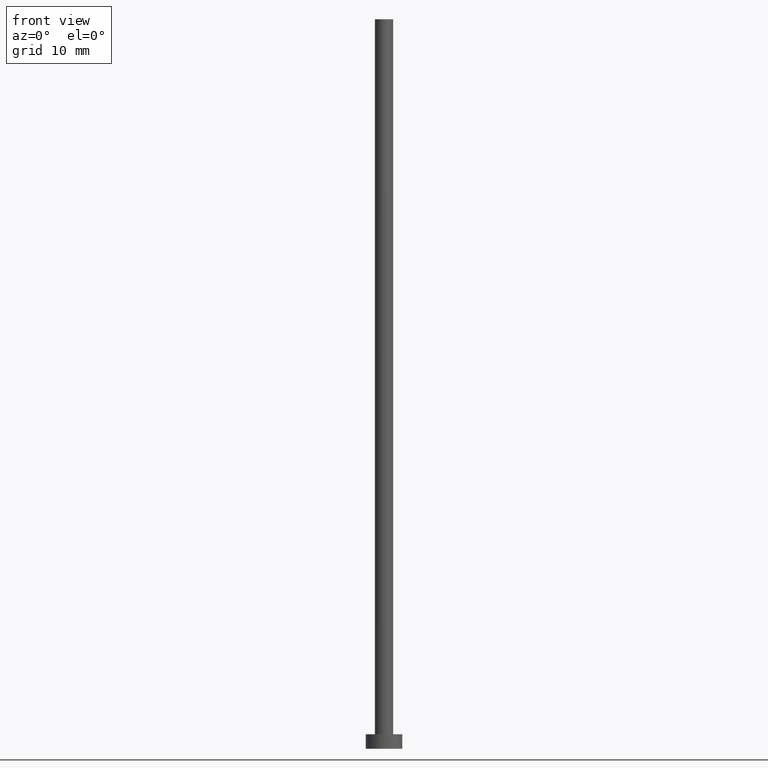
[diagram: clean part render]
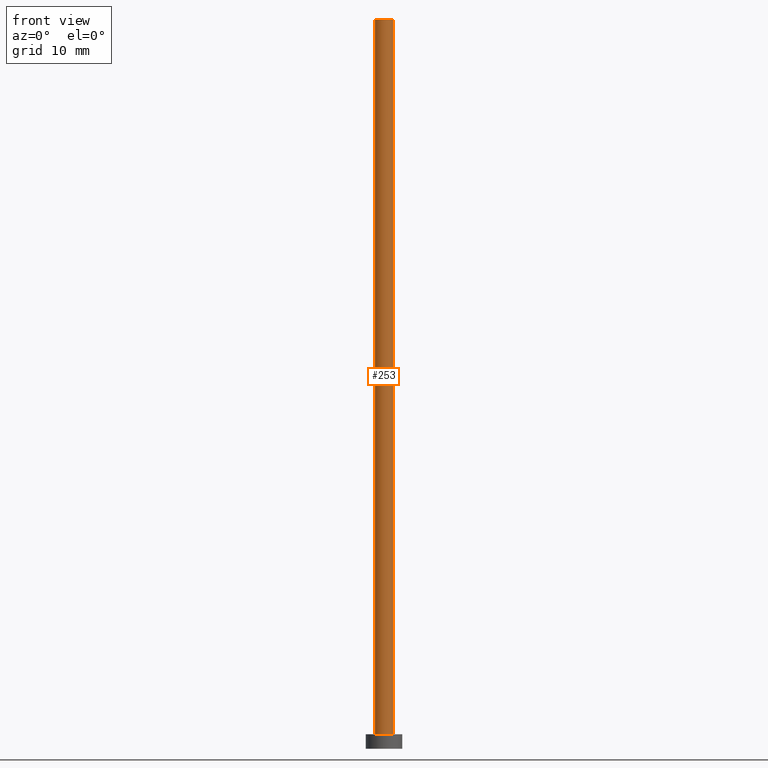
[diagram: same view with one face highlighted and labeled with its STEP entity id]
A machine part, front view. The second image highlights one B-rep face of the part: STEP entity #253.
In plain terms, the highlighted cylindrical surface (edge-blend (fillet) strip) has radius 1.25 mm, axis along (-0, -0, -1).
Its self-contained STEP definition (entity closure, byte-faithful):
#1 = DIRECTION ( 'NONE',  ( 0.000000000000000000, 0.000000000000000000, 1.000000000000000000 ) ) ;
#13 = VERTEX_POINT ( 'NONE', #80 ) ;
#21 = VERTEX_POINT ( 'NONE', #40 ) ;
#24 = AXIS2_PLACEMENT_3D ( 'NONE', #162, #1, #179 ) ;
#26 = FACE_OUTER_BOUND ( 'NONE', #225, .T. ) ;
#40 = CARTESIAN_POINT ( 'NONE',  ( 1.250000000000000000, 1.530808498934191571E-16, 100.0000000000000000 ) ) ;
#41 = CARTESIAN_POINT ( 'NONE',  ( -1.250000000000000000, 0.000000000000000000, 100.0000000000000000 ) ) ;
#43 = EDGE_CURVE ( 'NONE', #223, #13, #135, .T. ) ;
#46 = CARTESIAN_POINT ( 'NONE',  ( 0.000000000000000000, 0.000000000000000000, 2.000000000000000000 ) ) ;
#55 = EDGE_CURVE ( 'NONE', #21, #13, #93, .T. ) ;
#56 = CARTESIAN_POINT ( 'NONE',  ( 1.250000000000000000, 1.530808498934191571E-16, 100.0000000000000000 ) ) ;
#80 = CARTESIAN_POINT ( 'NONE',  ( 1.250000000000000000, 1.530808498934191571E-16, 2.000000000000000000 ) ) ;
#87 = AXIS2_PLACEMENT_3D ( 'NONE', #210, #136, #185 ) ;
#93 = LINE ( 'NONE', #56, #156 ) ;
#103 = CARTESIAN_POINT ( 'NONE',  ( -1.250000000000000000, 0.000000000000000000, 100.0000000000000000 ) ) ;
#107 = DIRECTION ( 'NONE',  ( 0.000000000000000000, 0.000000000000000000, 1.000000000000000000 ) ) ;
#117 = EDGE_CURVE ( 'NONE', #166, #21, #139, .T. ) ;
#127 = DIRECTION ( 'NONE',  ( 1.000000000000000000, 0.000000000000000000, 0.000000000000000000 ) ) ;
#130 = AXIS2_PLACEMENT_3D ( 'NONE', #46, #107, #127 ) ;
#135 = CIRCLE ( 'NONE', #130, 1.250000000000000000 ) ;
#136 = DIRECTION ( 'NONE',  ( -0.000000000000000000, -0.000000000000000000, -1.000000000000000000 ) ) ;
#139 = CIRCLE ( 'NONE', #24, 1.250000000000000000 ) ;
#149 = CARTESIAN_POINT ( 'NONE',  ( -1.250000000000000000, 0.000000000000000000, 2.000000000000000000 ) ) ;
#151 = ORIENTED_EDGE ( 'NONE', *, *, #198, .T. ) ;
#156 = VECTOR ( 'NONE', #215, 1000.000000000000000 ) ;
#162 = CARTESIAN_POINT ( 'NONE',  ( 0.000000000000000000, 0.000000000000000000, 100.0000000000000000 ) ) ;
#166 = VERTEX_POINT ( 'NONE', #41 ) ;
#179 = DIRECTION ( 'NONE',  ( 1.000000000000000000, 0.000000000000000000, 0.000000000000000000 ) ) ;
#185 = DIRECTION ( 'NONE',  ( -1.000000000000000000, 0.000000000000000000, 0.000000000000000000 ) ) ;
#198 = EDGE_CURVE ( 'NONE', #166, #223, #247, .T. ) ;
#205 = ORIENTED_EDGE ( 'NONE', *, *, #43, .T. ) ;
#206 = ORIENTED_EDGE ( 'NONE', *, *, #117, .F. ) ;
#210 = CARTESIAN_POINT ( 'NONE',  ( 0.000000000000000000, 0.000000000000000000, 100.0000000000000000 ) ) ;
#215 = DIRECTION ( 'NONE',  ( -0.000000000000000000, -0.000000000000000000, -1.000000000000000000 ) ) ;
#218 = DIRECTION ( 'NONE',  ( -0.000000000000000000, -0.000000000000000000, -1.000000000000000000 ) ) ;
#219 = ORIENTED_EDGE ( 'NONE', *, *, #55, .F. ) ;
#223 = VERTEX_POINT ( 'NONE', #149 ) ;
#225 = EDGE_LOOP ( 'NONE', ( #219, #206, #151, #205 ) ) ;
#247 = LINE ( 'NONE', #103, #252 ) ;
#249 = CYLINDRICAL_SURFACE ( 'NONE', #87, 1.250000000000000000 ) ;
#252 = VECTOR ( 'NONE', #218, 1000.000000000000000 ) ;
#253 = ADVANCED_FACE ( 'NONE', ( #26 ), #249, .T. ) ;